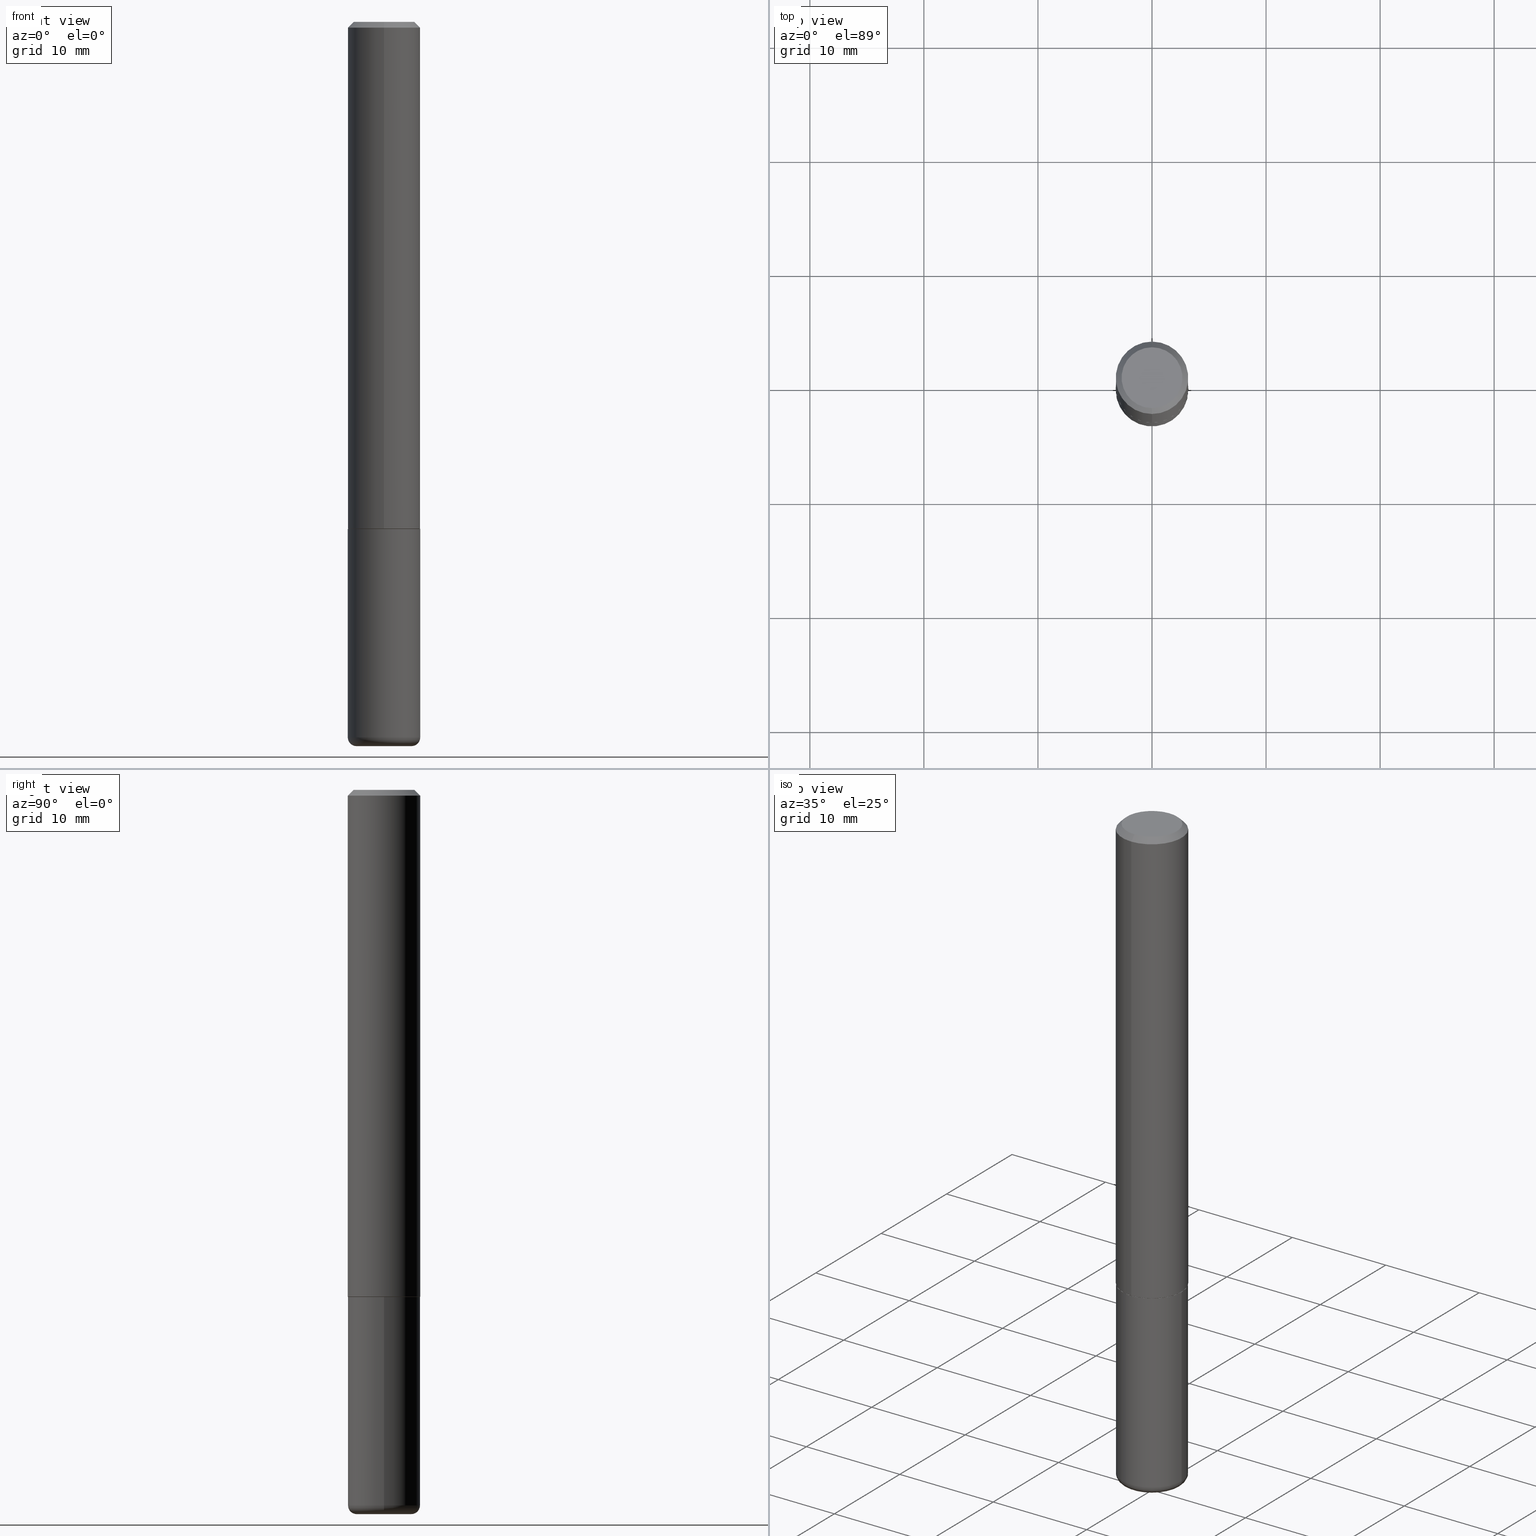
[diagram: canonical four-view strip — front | top / right | iso, engineering-drawing reading convention]
A machine part, canonical four-view strip (front | top / right | iso — engineering-drawing reading convention). The complete STEP part file that produces these views, byte-faithful:
ISO-10303-21;
HEADER;
FILE_DESCRIPTION (( 'STEP AP203' ),
    '1' );
FILE_NAME ('38364.STEP',
    '2024-03-03T01:00:45',
    ( '' ),
    ( '' ),
    'SwSTEP 2.0',
    'SolidWorks 2023',
    '' );
FILE_SCHEMA (( 'CONFIG_CONTROL_DESIGN' ));
ENDSEC;

DATA;
#1 = DIRECTION ( 'NONE',  ( 1.000000000000000000, -6.982962677686262766E-15, 0.000000000000000000 ) ) ;
#2 = AXIS2_PLACEMENT_3D ( 'NONE', #333, #9, #16 ) ;
#3 = AXIS2_PLACEMENT_3D ( 'NONE', #384, #123, #316 ) ;
#4 = CARTESIAN_POINT ( 'NONE',  ( 0.1250000000000000000, -6.982962677686288010E-15, -1.750000000000000222 ) ) ;
#5 = EDGE_CURVE ( 'NONE', #179, #235, #12, .T. ) ;
#6 = PERSON_AND_ORGANIZATION ( #399, #414 ) ;
#7 = CIRCLE ( 'NONE', #403, 0.1250000000000002498 ) ;
#8 = LOCAL_TIME ( 20, 0, 45.00000000000000000, #105 ) ;
#9 = DIRECTION ( 'NONE',  ( -2.446310369361453361E-29, 3.490276172475858772E-15, 1.000000000000000000 ) ) ;
#10 = DATE_TIME_ROLE ( 'classification_date' ) ;
#11 = DIRECTION ( 'NONE',  ( -6.982962677686266711E-15, -1.000000000000000000, 3.490276172475858772E-15 ) ) ;
#12 = CIRCLE ( 'NONE', #270, 0.1049999999999999267 ) ;
#13 = COORDINATED_UNIVERSAL_TIME_OFFSET ( 5, 0, .BEHIND. ) ;
#14 = CONICAL_SURFACE ( 'NONE', #59, 0.1250000000000000000, 0.7853981633974473908 ) ;
#15 = CC_DESIGN_APPROVAL ( #19, ( #90 ) ) ;
#16 = DIRECTION ( 'NONE',  ( -6.982962677686265922E-15, -1.000000000000000000, 4.406206441393973340E-15 ) ) ;
#17 = EDGE_LOOP ( 'NONE', ( #142, #306, #108, #92 ) ) ;
#18 = DIRECTION ( 'NONE',  ( 1.000000000000000000, -6.982962677686266711E-15, 4.876176775795935793E-29 ) ) ;
#19 = APPROVAL ( #157, 'UNSPECIFIED' ) ;
#20 = VERTEX_POINT ( 'NONE', #184 ) ;
#21 = CIRCLE ( 'NONE', #188, 0.1250000000000002498 ) ;
#22 = FACE_OUTER_BOUND ( 'NONE', #31, .T. ) ;
#23 = ORIENTED_EDGE ( 'NONE', *, *, #308, .T. ) ;
#24 = UNCERTAINTY_MEASURE_WITH_UNIT (LENGTH_MEASURE( 1.000000000000000082E-05 ), #388, 'distance_accuracy_value', 'NONE');
#25 = DIRECTION ( 'NONE',  ( 4.937700262164543309E-15, 0.7071067811865444641, -0.7071067811865506814 ) ) ;
#26 = LINE ( 'NONE', #344, #145 ) ;
#27 = FACE_OUTER_BOUND ( 'NONE', #140, .T. ) ;
#28 = ORIENTED_EDGE ( 'NONE', *, *, #317, .F. ) ;
#29 = PERSON_AND_ORGANIZATION ( #399, #414 ) ;
#30 = EDGE_LOOP ( 'NONE', ( #218, #110, #345, #233 ) ) ;
#31 = EDGE_LOOP ( 'NONE', ( #315, #369 ) ) ;
#32 =( NAMED_UNIT ( * ) SI_UNIT ( $, .STERADIAN. ) SOLID_ANGLE_UNIT ( ) );
#33 = CARTESIAN_POINT ( 'NONE',  ( 4.279570410823989044E-29, -6.110092342975505460E-15, -1.750000000000000222 ) ) ;
#34 = ORIENTED_EDGE ( 'NONE', *, *, #346, .F. ) ;
#35 = DIRECTION ( 'NONE',  ( -2.445468806185136597E-29, 3.491481338843145583E-15, 1.000000000000000000 ) ) ;
#36 = EDGE_CURVE ( 'NONE', #398, #20, #7, .T. ) ;
#37 = AXIS2_PLACEMENT_3D ( 'NONE', #155, #296, #347 ) ;
#38 = CC_DESIGN_SECURITY_CLASSIFICATION ( #78, ( #173 ) ) ;
#39 = FACE_OUTER_BOUND ( 'NONE', #124, .T. ) ;
#40 = LINE ( 'NONE', #131, #335 ) ;
#41 = ORIENTED_EDGE ( 'NONE', *, *, #279, .T. ) ;
#42 = CARTESIAN_POINT ( 'NONE',  ( 8.030407079339205337E-16, 0.1049999999999999267, -2.769667782864213337E-16 ) ) ;
#43 = ORIENTED_EDGE ( 'NONE', *, *, #408, .T. ) ;
#44 =( GEOMETRIC_REPRESENTATION_CONTEXT ( 3 ) GLOBAL_UNCERTAINTY_ASSIGNED_CONTEXT ( ( #24 ) ) GLOBAL_UNIT_ASSIGNED_CONTEXT ( ( #388, #219, #32 ) ) REPRESENTATION_CONTEXT ( 'NONE', 'WORKASPACE' ) );
#45 = ADVANCED_FACE ( 'NONE', ( #313 ), #256, .T. ) ;
#46 = CARTESIAN_POINT ( 'NONE',  ( 0.000000000000000000, 0.000000000000000000, 0.000000000000000000 ) ) ;
#47 = ORIENTED_EDGE ( 'NONE', *, *, #164, .T. ) ;
#48 = DIRECTION ( 'NONE',  ( -2.445468806185136597E-29, 3.491481338843145583E-15, 1.000000000000000000 ) ) ;
#49 = ORIENTED_EDGE ( 'NONE', *, *, #196, .T. ) ;
#50 = ADVANCED_FACE ( 'NONE', ( #252 ), #363, .T. ) ;
#51 = AXIS2_PLACEMENT_3D ( 'NONE', #103, #75, #336 ) ;
#52 = ORIENTED_EDGE ( 'NONE', *, *, #297, .F. ) ;
#53 = CC_DESIGN_PERSON_AND_ORGANIZATION_ASSIGNMENT ( #127, #95, ( #78 ) ) ;
#54 = CARTESIAN_POINT ( 'NONE',  ( -0.09499999999999998723, -7.894734117689107359E-15, -2.500000000000000444 ) ) ;
#55 = ORIENTED_EDGE ( 'NONE', *, *, #65, .F. ) ;
#56 = DIRECTION ( 'NONE',  ( -2.445468806185136597E-29, 3.491481338843145583E-15, 1.000000000000000000 ) ) ;
#57 = ORIENTED_EDGE ( 'NONE', *, *, #170, .T. ) ;
#58 = MANIFOLD_SOLID_BREP ( 'Body-Move/Copy2[1]', #187 ) ;
#59 = AXIS2_PLACEMENT_3D ( 'NONE', #89, #387, #221 ) ;
#60 = PRODUCT ( '38364', '38364', '', ( #352 ) ) ;
#61 = CARTESIAN_POINT ( 'NONE',  ( 4.278596836013182697E-29, -6.104493025660276744E-15, -1.749000000000000110 ) ) ;
#62 = CYLINDRICAL_SURFACE ( 'NONE', #93, 0.1250000000000001110 ) ;
#63 = PERSON_AND_ORGANIZATION_ROLE ( 'design_owner' ) ;
#64 = APPROVAL_PERSON_ORGANIZATION ( #152, #19, #323 ) ;
#65 = EDGE_CURVE ( 'NONE', #73, #409, #26, .T. ) ;
#66 = DIRECTION ( 'NONE',  ( -6.982962677686266711E-15, -1.000000000000000000, 3.490276172475858772E-15 ) ) ;
#67 = CARTESIAN_POINT ( 'NONE',  ( 4.892620738722911906E-31, -6.980552344951725975E-17, -0.02000000000000002470 ) ) ;
#68 = AXIS2_PLACEMENT_3D ( 'NONE', #229, #314, #376 ) ;
#69 = AXIS2_PLACEMENT_3D ( 'NONE', #154, #128, #254 ) ;
#70 = DIRECTION ( 'NONE',  ( 1.000000000000000000, -6.982962677686270655E-15, 0.000000000000000000 ) ) ;
#71 = MANIFOLD_SOLID_BREP ( 'Body-Move/Copy2[2]', #130 ) ;
#72 = DIRECTION ( 'NONE',  ( -2.446310369361453361E-29, 3.490276172475858772E-15, 1.000000000000000000 ) ) ;
#73 = VERTEX_POINT ( 'NONE', #255 ) ;
#74 = EDGE_CURVE ( 'NONE', #153, #176, #277, .T. ) ;
#75 = DIRECTION ( 'NONE',  ( -2.445468806185136597E-29, 3.491481338843145583E-15, 1.000000000000000000 ) ) ;
#76 = ORIENTED_EDGE ( 'NONE', *, *, #308, .F. ) ;
#77 = AXIS2_PLACEMENT_3D ( 'NONE', #397, #395, #234 ) ;
#78 = SECURITY_CLASSIFICATION ( '', '', #207 ) ;
#79 = CC_DESIGN_DATE_AND_TIME_ASSIGNMENT ( #271, #10, ( #78 ) ) ;
#80 = DIRECTION ( 'NONE',  ( -2.446310369361453361E-29, 3.490276172475858378E-15, 1.000000000000000000 ) ) ;
#81 = ORIENTED_EDGE ( 'NONE', *, *, #328, .T. ) ;
#82 = DIRECTION ( 'NONE',  ( -6.982962677686265922E-15, -1.000000000000000000, 3.490276172475858378E-15 ) ) ;
#83 = ADVANCED_FACE ( 'NONE', ( #220 ), #14, .T. ) ;
#84 = DIRECTION ( 'NONE',  ( 1.000000000000000000, -6.982962677686262766E-15, 0.000000000000000000 ) ) ;
#85 = ORIENTED_EDGE ( 'NONE', *, *, #200, .T. ) ;
#86 = AXIS2_PLACEMENT_3D ( 'NONE', #326, #150, #285 ) ;
#87 = LINE ( 'NONE', #283, #225 ) ;
#88 = ORIENTED_EDGE ( 'NONE', *, *, #74, .T. ) ;
#89 = CARTESIAN_POINT ( 'NONE',  ( 4.892620738722911906E-31, -6.980552344951725975E-17, -0.02000000000000002470 ) ) ;
#90 = PRODUCT_DEFINITION ( 'UNKNOWN', '', #173, #134 ) ;
#91 = LENGTH_MEASURE_WITH_UNIT ( LENGTH_MEASURE( 0.02539999999999999897 ), #222 );
#92 = ORIENTED_EDGE ( 'NONE', *, *, #164, .F. ) ;
#93 = AXIS2_PLACEMENT_3D ( 'NONE', #366, #72, #11 ) ;
#94 = FACE_OUTER_BOUND ( 'NONE', #250, .T. ) ;
#95 = PERSON_AND_ORGANIZATION_ROLE ( 'classification_officer' ) ;
#96 = CALENDAR_DATE ( 2024, 2, 3 ) ;
#97 = AXIS2_PLACEMENT_3D ( 'NONE', #100, #107, #139 ) ;
#98 = APPROVAL_PERSON_ORGANIZATION ( #325, #193, #295 ) ;
#99 = PERSON_AND_ORGANIZATION ( #399, #414 ) ;
#100 = CARTESIAN_POINT ( 'NONE',  ( 4.892620738722911906E-31, -6.980552344951725975E-17, -0.02000000000000002470 ) ) ;
#101 = CALENDAR_DATE ( 2024, 2, 3 ) ;
#102 = CARTESIAN_POINT ( 'NONE',  ( -8.658873720330540358E-16, -0.1240000000000061053, -1.749999999999999556 ) ) ;
#103 = CARTESIAN_POINT ( 'NONE',  ( 6.113672015462842613E-29, -8.728703347107866520E-15, -2.500000000000000444 ) ) ;
#104 = AXIS2_PLACEMENT_3D ( 'NONE', #67, #166, #172 ) ;
#105 = COORDINATED_UNIVERSAL_TIME_OFFSET ( 5, 0, .BEHIND. ) ;
#106 = CARTESIAN_POINT ( 'NONE',  ( -7.889572697437255223E-16, -0.1049999999999999267, 4.559912179335083715E-16 ) ) ;
#107 = DIRECTION ( 'NONE',  ( 2.446310369361453361E-29, -3.490276172475858772E-15, -1.000000000000000000 ) ) ;
#108 = ORIENTED_EDGE ( 'NONE', *, *, #294, .T. ) ;
#109 = CARTESIAN_POINT ( 'NONE',  ( 4.281043146382543451E-29, -6.107983301832753147E-15, -1.750000000000000222 ) ) ;
#110 = ORIENTED_EDGE ( 'NONE', *, *, #317, .T. ) ;
#111 = CIRCLE ( 'NONE', #391, 0.03000000000000024175 ) ;
#112 = DIRECTION ( 'NONE',  ( 5.024295867788490741E-15, 0.7071067811866103003, 0.7071067811864847341 ) ) ;
#113 = ORIENTED_EDGE ( 'NONE', *, *, #322, .T. ) ;
#114 = APPROVAL ( #167, 'UNSPECIFIED' ) ;
#115 = EDGE_LOOP ( 'NONE', ( #52, #120 ) ) ;
#116 = PLANE ( 'NONE',  #205 ) ;
#117 = ORIENTED_EDGE ( 'NONE', *, *, #370, .F. ) ;
#118 = CONICAL_SURFACE ( 'NONE', #97, 0.1250000000000000000, 0.7853981633974473908 ) ;
#119 = CARTESIAN_POINT ( 'NONE',  ( 4.279570410823989044E-29, -6.110092342975505460E-15, -1.750000000000000222 ) ) ;
#120 = ORIENTED_EDGE ( 'NONE', *, *, #302, .F. ) ;
#121 = ADVANCED_FACE ( 'NONE', ( #94 ), #62, .T. ) ;
#122 = DIRECTION ( 'NONE',  ( -6.982962677686265133E-15, -1.000000000000000000, 4.370956789862812472E-15 ) ) ;
#123 = DIRECTION ( 'NONE',  ( -2.446310369361453080E-29, 3.490276172475858378E-15, 1.000000000000000000 ) ) ;
#124 = EDGE_LOOP ( 'NONE', ( #76, #274, #85, #28 ) ) ;
#125 = CARTESIAN_POINT ( 'NONE',  ( 6.040307951277287977E-29, -8.623958906942569995E-15, -2.470000000000000195 ) ) ;
#126 = LOCAL_TIME ( 20, 0, 45.00000000000000000, #259 ) ;
#127 = PERSON_AND_ORGANIZATION ( #399, #414 ) ;
#128 = DIRECTION ( 'NONE',  ( 0.000000000000000000, 0.000000000000000000, 1.000000000000000000 ) ) ;
#129 = SHAPE_DEFINITION_REPRESENTATION ( #162, #158 ) ;
#130 = CLOSED_SHELL ( 'NONE', ( #50, #121, #83, #258, #183, #243, #392, #360 ) ) ;
#131 = CARTESIAN_POINT ( 'NONE',  ( -0.1250000000000000000, 8.881784197001252323E-16, -6.148668862818632227E-30 ) ) ;
#132 = CIRCLE ( 'NONE', #224, 0.09499999999999998723 ) ;
#133 = EDGE_CURVE ( 'NONE', #377, #182, #40, .T. ) ;
#134 = DESIGN_CONTEXT ( 'detailed design', #268, 'design' ) ;
#135 = FACE_OUTER_BOUND ( 'NONE', #272, .T. ) ;
#136 = LINE ( 'NONE', #102, #350 ) ;
#137 = DIRECTION ( 'NONE',  ( -2.446310369361453361E-29, 3.490276172475858378E-15, 1.000000000000000000 ) ) ;
#138 = ORIENTED_EDGE ( 'NONE', *, *, #5, .F. ) ;
#139 = DIRECTION ( 'NONE',  ( 6.982962677686265922E-15, 1.000000000000000000, -3.483106191921935554E-15 ) ) ;
#140 = EDGE_LOOP ( 'NONE', ( #319, #113 ) ) ;
#141 = FACE_OUTER_BOUND ( 'NONE', #115, .T. ) ;
#142 = ORIENTED_EDGE ( 'NONE', *, *, #215, .F. ) ;
#143 = DIRECTION ( 'NONE',  ( -6.982962677686265922E-15, -1.000000000000000000, 4.406206441393973340E-15 ) ) ;
#144 = ORIENTED_EDGE ( 'NONE', *, *, #170, .F. ) ;
#145 = VECTOR ( 'NONE', #382, 39.37007874015748143 ) ;
#146 = PLANE ( 'NONE',  #238 ) ;
#147 = ORIENTED_EDGE ( 'NONE', *, *, #36, .F. ) ;
#148 = ORIENTED_EDGE ( 'NONE', *, *, #297, .T. ) ;
#149 = ADVANCED_FACE ( 'NONE', ( #135 ), #232, .T. ) ;
#150 = DIRECTION ( 'NONE',  ( -2.446310369361453361E-29, 3.490276172475858772E-15, 1.000000000000000000 ) ) ;
#151 = AXIS2_PLACEMENT_3D ( 'NONE', #375, #237, #143 ) ;
#152 = PERSON_AND_ORGANIZATION ( #399, #414 ) ;
#153 = VERTEX_POINT ( 'NONE', #362 ) ;
#154 = CARTESIAN_POINT ( 'NONE',  ( 0.000000000000000000, 0.000000000000000000, 0.000000000000000000 ) ) ;
#155 = CARTESIAN_POINT ( 'NONE',  ( 6.040307951277287977E-29, -8.623958906942569995E-15, -2.470000000000000195 ) ) ;
#156 = ADVANCED_FACE ( 'NONE', ( #327 ), #180, .T. ) ;
#157 = APPROVAL_STATUS ( 'not_yet_approved' ) ;
#158 = ADVANCED_BREP_SHAPE_REPRESENTATION ( '38364', ( #58, #71, #69 ), #44 ) ;
#159 = PERSON_AND_ORGANIZATION_ROLE ( 'creator' ) ;
#160 = AXIS2_PLACEMENT_3D ( 'NONE', #125, #320, #290 ) ;
#161 = PERSON_AND_ORGANIZATION ( #399, #414 ) ;
#162 = PRODUCT_DEFINITION_SHAPE ( 'NONE', 'NONE',  #90 ) ;
#163 = ORIENTED_EDGE ( 'NONE', *, *, #408, .F. ) ;
#164 = EDGE_CURVE ( 'NONE', #377, #73, #247, .T. ) ;
#165 = DATE_AND_TIME ( #169, #8 ) ;
#166 = DIRECTION ( 'NONE',  ( -2.446310369361453361E-29, 3.490276172475858772E-15, 1.000000000000000000 ) ) ;
#167 = APPROVAL_STATUS ( 'not_yet_approved' ) ;
#168 = CARTESIAN_POINT ( 'NONE',  ( -8.575622497214408537E-16, -0.1250000000000000555, -0.01999999999999959102 ) ) ;
#169 = CALENDAR_DATE ( 2024, 2, 3 ) ;
#170 = EDGE_CURVE ( 'NONE', #176, #153, #371, .T. ) ;
#171 = DIRECTION ( 'NONE',  ( -2.445468806185136877E-29, 3.491481338843145188E-15, 1.000000000000000000 ) ) ;
#172 = DIRECTION ( 'NONE',  ( -6.982962677686265922E-15, -1.000000000000000000, 3.483106191921935554E-15 ) ) ;
#173 = PRODUCT_DEFINITION_FORMATION_WITH_SPECIFIED_SOURCE ( 'ANY', '', #60, .NOT_KNOWN. ) ;
#174 = LOCAL_TIME ( 20, 0, 45.00000000000000000, #192 ) ;
#175 = FACE_OUTER_BOUND ( 'NONE', #276, .T. ) ;
#176 = VERTEX_POINT ( 'NONE', #202 ) ;
#177 = CARTESIAN_POINT ( 'NONE',  ( 4.278596836013182697E-29, -6.104493025660276744E-15, -1.749000000000000110 ) ) ;
#178 = CARTESIAN_POINT ( 'NONE',  ( -2.189746715388963618E-45, 3.124223679955351557E-31, 8.951221982354351893E-17 ) ) ;
#179 = VERTEX_POINT ( 'NONE', #42 ) ;
#180 = TOROIDAL_SURFACE ( 'NONE', #260, 0.09499999999999998723, 0.03000000000000025216 ) ;
#181 = DIRECTION ( 'NONE',  ( -6.982962677686265922E-15, -1.000000000000000000, 4.406206441393973340E-15 ) ) ;
#182 = VERTEX_POINT ( 'NONE', #396 ) ;
#183 = ADVANCED_FACE ( 'NONE', ( #262 ), #201, .T. ) ;
#184 = CARTESIAN_POINT ( 'NONE',  ( 8.881784197001479121E-16, 0.1249999999999941019, -1.749000000000000554 ) ) ;
#185 = APPLICATION_CONTEXT ( 'configuration controlled 3d designs of mechanical parts and assemblies' ) ;
#186 = VERTEX_POINT ( 'NONE', #299 ) ;
#187 = CLOSED_SHELL ( 'NONE', ( #149, #156, #263, #385, #45, #353 ) ) ;
#188 = AXIS2_PLACEMENT_3D ( 'NONE', #177, #400, #372 ) ;
#189 = CARTESIAN_POINT ( 'NONE',  ( -8.658873720330540358E-16, -0.1240000000000061053, -1.749999999999999556 ) ) ;
#190 = DIRECTION ( 'NONE',  ( -2.446310369361453361E-29, 3.490276172475858772E-15, 1.000000000000000000 ) ) ;
#191 = CARTESIAN_POINT ( 'NONE',  ( -8.728703347107421208E-16, -0.1250000000000063560, -1.748999999999999666 ) ) ;
#192 = COORDINATED_UNIVERSAL_TIME_OFFSET ( 5, 0, .BEHIND. ) ;
#193 = APPROVAL ( #390, 'UNSPECIFIED' ) ;
#194 = DATE_TIME_ROLE ( 'creation_date' ) ;
#195 = VECTOR ( 'NONE', #25, 39.37007874015748143 ) ;
#196 = EDGE_CURVE ( 'NONE', #20, #153, #394, .T. ) ;
#197 = ORIENTED_EDGE ( 'NONE', *, *, #402, .T. ) ;
#198 = CARTESIAN_POINT ( 'NONE',  ( 8.846257060213682142E-16, 0.1239999999999938790, -1.750000000000000666 ) ) ;
#199 = DIRECTION ( 'NONE',  ( -4.937700262164969294E-15, -0.7071067811866054154, 0.7071067811864896191 ) ) ;
#200 = EDGE_CURVE ( 'NONE', #401, #398, #136, .T. ) ;
#201 = CYLINDRICAL_SURFACE ( 'NONE', #298, 0.1250000000000001110 ) ;
#202 = CARTESIAN_POINT ( 'NONE',  ( -8.575622497214408537E-16, -0.1250000000000000555, -0.01999999999999959102 ) ) ;
#203 = LINE ( 'NONE', #168, #356 ) ;
#204 = AXIS2_PLACEMENT_3D ( 'NONE', #418, #383, #282 ) ;
#205 = AXIS2_PLACEMENT_3D ( 'NONE', #305, #242, #342 ) ;
#206 = ORIENTED_EDGE ( 'NONE', *, *, #200, .F. ) ;
#207 = SECURITY_CLASSIFICATION_LEVEL ( 'unclassified' ) ;
#208 = CC_DESIGN_DATE_AND_TIME_ASSIGNMENT ( #223, #194, ( #90 ) ) ;
#209 = DIRECTION ( 'NONE',  ( 2.438088387897960049E-29, -3.491481338843145188E-15, -1.000000000000000000 ) ) ;
#210 = VERTEX_POINT ( 'NONE', #198 ) ;
#211 = CARTESIAN_POINT ( 'NONE',  ( 8.810729923425669213E-16, 0.1239999999999938790, -1.750000000000000666 ) ) ;
#212 = ORIENTED_EDGE ( 'NONE', *, *, #328, .F. ) ;
#213 = DIRECTION ( 'NONE',  ( -2.446310369361453361E-29, 3.490276172475858772E-15, 1.000000000000000000 ) ) ;
#214 = DIRECTION ( 'NONE',  ( -6.982962677686265922E-15, -1.000000000000000000, 3.490276172475858378E-15 ) ) ;
#215 = EDGE_CURVE ( 'NONE', #338, #377, #111, .T. ) ;
#216 = AXIS2_PLACEMENT_3D ( 'NONE', #178, #240, #82 ) ;
#217 = DIRECTION ( 'NONE',  ( -2.446310369361453361E-29, 3.490276172475858772E-15, 1.000000000000000000 ) ) ;
#218 = ORIENTED_EDGE ( 'NONE', *, *, #196, .F. ) ;
#219 =( NAMED_UNIT ( * ) PLANE_ANGLE_UNIT ( ) SI_UNIT ( $, .RADIAN. ) );
#220 = FACE_OUTER_BOUND ( 'NONE', #241, .T. ) ;
#221 = DIRECTION ( 'NONE',  ( 6.982962677686265922E-15, 1.000000000000000000, -3.483106191921935554E-15 ) ) ;
#222 =( LENGTH_UNIT ( ) NAMED_UNIT ( * ) SI_UNIT ( $, .METRE. ) );
#223 = DATE_AND_TIME ( #293, #286 ) ;
#224 = AXIS2_PLACEMENT_3D ( 'NONE', #340, #48, #281 ) ;
#225 = VECTOR ( 'NONE', #80, 39.37007874015748143 ) ;
#226 = APPROVAL_ROLE ( '' ) ;
#227 = PLANE ( 'NONE',  #77 ) ;
#228 = CARTESIAN_POINT ( 'NONE',  ( 6.040307951277287977E-29, -8.623958906942569995E-15, -2.470000000000000195 ) ) ;
#229 = CARTESIAN_POINT ( 'NONE',  ( 0.09499999999999998723, -9.287340361322766595E-15, -2.470000000000000195 ) ) ;
#230 = CIRCLE ( 'NONE', #51, 0.09499999999999998723 ) ;
#231 = CC_DESIGN_APPROVAL ( #193, ( #173 ) ) ;
#232 = CYLINDRICAL_SURFACE ( 'NONE', #284, 0.1250000000000000000 ) ;
#233 = ORIENTED_EDGE ( 'NONE', *, *, #74, .F. ) ;
#234 = DIRECTION ( 'NONE',  ( -1.000000000000000000, 6.982962677686265922E-15, -4.876176775795935793E-29 ) ) ;
#235 = VERTEX_POINT ( 'NONE', #106 ) ;
#236 = CC_DESIGN_PERSON_AND_ORGANIZATION_ASSIGNMENT ( #29, #63, ( #60 ) ) ;
#237 = DIRECTION ( 'NONE',  ( -2.446310369361453361E-29, 3.490276172475858772E-15, 1.000000000000000000 ) ) ;
#238 = AXIS2_PLACEMENT_3D ( 'NONE', #406, #209, #407 ) ;
#239 = EDGE_LOOP ( 'NONE', ( #197, #341 ) ) ;
#240 = DIRECTION ( 'NONE',  ( -2.446310369361453361E-29, 3.490276172475858772E-15, 1.000000000000000000 ) ) ;
#241 = EDGE_LOOP ( 'NONE', ( #291, #374, #57, #212 ) ) ;
#242 = DIRECTION ( 'NONE',  ( 2.446310369361453080E-29, -3.490276172475858378E-15, -1.000000000000000000 ) ) ;
#243 = ADVANCED_FACE ( 'NONE', ( #39 ), #329, .T. ) ;
#244 = ORIENTED_EDGE ( 'NONE', *, *, #253, .F. ) ;
#245 = CARTESIAN_POINT ( 'NONE',  ( -2.189746715388963618E-45, 3.124223679955351557E-31, 8.951221982354351893E-17 ) ) ;
#246 = PRODUCT_RELATED_PRODUCT_CATEGORY ( 'detail', '', ( #60 ) ) ;
#247 = CIRCLE ( 'NONE', #386, 0.1250000000000000000 ) ;
#248 = PERSON_AND_ORGANIZATION ( #399, #414 ) ;
#249 = CARTESIAN_POINT ( 'NONE',  ( 0.000000000000000000, 0.000000000000000000, 0.000000000000000000 ) ) ;
#250 = EDGE_LOOP ( 'NONE', ( #417, #49, #144, #117 ) ) ;
#251 = CALENDAR_DATE ( 2024, 2, 3 ) ;
#252 = FACE_OUTER_BOUND ( 'NONE', #351, .T. ) ;
#253 = EDGE_CURVE ( 'NONE', #235, #176, #203, .T. ) ;
#254 = DIRECTION ( 'NONE',  ( 1.000000000000000000, 0.000000000000000000, 0.000000000000000000 ) ) ;
#255 = CARTESIAN_POINT ( 'NONE',  ( 0.1250000000000001110, -9.496829241653354912E-15, -2.470000000000000195 ) ) ;
#256 = TOROIDAL_SURFACE ( 'NONE', #37, 0.09499999999999998723, 0.03000000000000025216 ) ;
#257 = APPLICATION_PROTOCOL_DEFINITION ( 'international standard', 'config_control_design', 1994, #185 ) ;
#258 = ADVANCED_FACE ( 'NONE', ( #175 ), #118, .T. ) ;
#259 = COORDINATED_UNIVERSAL_TIME_OFFSET ( 5, 0, .BEHIND. ) ;
#260 = AXIS2_PLACEMENT_3D ( 'NONE', #228, #331, #303 ) ;
#261 = CC_DESIGN_APPROVAL ( #114, ( #78 ) ) ;
#262 = FACE_OUTER_BOUND ( 'NONE', #30, .T. ) ;
#263 = ADVANCED_FACE ( 'NONE', ( #267 ), #227, .F. ) ;
#264 = CARTESIAN_POINT ( 'NONE',  ( 6.040307951277287977E-29, -8.623958906942569995E-15, -2.470000000000000195 ) ) ;
#265 = PERSON_AND_ORGANIZATION_ROLE ( 'design_supplier' ) ;
#266 = CC_DESIGN_PERSON_AND_ORGANIZATION_ASSIGNMENT ( #6, #410, ( #173 ) ) ;
#267 = FACE_OUTER_BOUND ( 'NONE', #239, .T. ) ;
#268 = APPLICATION_CONTEXT ( 'configuration controlled 3d designs of mechanical parts and assemblies' ) ;
#269 = CARTESIAN_POINT ( 'NONE',  ( -0.09499999999999998723, -7.948943307970475008E-15, -2.470000000000000195 ) ) ;
#270 = AXIS2_PLACEMENT_3D ( 'NONE', #245, #217, #214 ) ;
#271 = DATE_AND_TIME ( #101, #364 ) ;
#272 = EDGE_LOOP ( 'NONE', ( #43, #367, #380, #55 ) ) ;
#273 = DIRECTION ( 'NONE',  ( 7.105427357601001859E-15, 1.000000000000000000, -3.491481338843145583E-15 ) ) ;
#274 = ORIENTED_EDGE ( 'NONE', *, *, #302, .T. ) ;
#275 = PLANE ( 'NONE',  #3 ) ;
#276 = EDGE_LOOP ( 'NONE', ( #244, #138, #81, #88 ) ) ;
#277 = CIRCLE ( 'NONE', #86, 0.1250000000000000000 ) ;
#278 = APPROVAL_PERSON_ORGANIZATION ( #99, #114, #226 ) ;
#279 = EDGE_CURVE ( 'NONE', #186, #338, #230, .T. ) ;
#280 = CARTESIAN_POINT ( 'NONE',  ( -0.1250000000000001110, -7.735780487242444763E-15, -2.470000000000000195 ) ) ;
#281 = DIRECTION ( 'NONE',  ( 1.000000000000000000, -6.982962677686273021E-15, 0.000000000000000000 ) ) ;
#282 = DIRECTION ( 'NONE',  ( -6.982962677686265922E-15, -1.000000000000000000, 4.406206441393973340E-15 ) ) ;
#283 = CARTESIAN_POINT ( 'NONE',  ( -8.728703347107841277E-16, -0.1250000000000001110, 4.362845215594827410E-16 ) ) ;
#284 = AXIS2_PLACEMENT_3D ( 'NONE', #368, #300, #365 ) ;
#285 = DIRECTION ( 'NONE',  ( -6.982962677686265922E-15, -1.000000000000000000, 3.483106191921935554E-15 ) ) ;
#286 = LOCAL_TIME ( 20, 0, 45.00000000000000000, #389 ) ;
#287 = DATE_AND_TIME ( #251, #174 ) ;
#288 = ORIENTED_EDGE ( 'NONE', *, *, #215, .T. ) ;
#289 = CC_DESIGN_PERSON_AND_ORGANIZATION_ASSIGNMENT ( #161, #159, ( #90 ) ) ;
#290 = DIRECTION ( 'NONE',  ( 1.000000000000000000, -6.982962677686270655E-15, 0.000000000000000000 ) ) ;
#291 = ORIENTED_EDGE ( 'NONE', *, *, #322, .F. ) ;
#292 = CIRCLE ( 'NONE', #68, 0.03000000000000024175 ) ;
#293 = CALENDAR_DATE ( 2024, 2, 3 ) ;
#294 = EDGE_CURVE ( 'NONE', #186, #73, #292, .T. ) ;
#295 = APPROVAL_ROLE ( '' ) ;
#296 = DIRECTION ( 'NONE',  ( -2.445468806185136597E-29, 3.491481338843145583E-15, 1.000000000000000000 ) ) ;
#297 = EDGE_CURVE ( 'NONE', #401, #210, #318, .T. ) ;
#298 = AXIS2_PLACEMENT_3D ( 'NONE', #46, #301, #66 ) ;
#299 = CARTESIAN_POINT ( 'NONE',  ( 0.09499999999999998723, -9.392084801488061542E-15, -2.500000000000000444 ) ) ;
#300 = DIRECTION ( 'NONE',  ( -2.445468806185136597E-29, 3.491481338843145583E-15, 1.000000000000000000 ) ) ;
#301 = DIRECTION ( 'NONE',  ( -2.446310369361453361E-29, 3.490276172475858772E-15, 1.000000000000000000 ) ) ;
#302 = EDGE_CURVE ( 'NONE', #210, #401, #412, .T. ) ;
#303 = DIRECTION ( 'NONE',  ( 1.000000000000000000, -6.982962677686273021E-15, 4.883557194083115143E-29 ) ) ;
#304 = VECTOR ( 'NONE', #112, 39.37007874015748143 ) ;
#305 = CARTESIAN_POINT ( 'NONE',  ( 7.332110811570574327E-16, 0.1049999999999999267, -3.217228881981931301E-16 ) ) ;
#306 = ORIENTED_EDGE ( 'NONE', *, *, #332, .T. ) ;
#307 = EDGE_LOOP ( 'NONE', ( #41, #288, #163, #334 ) ) ;
#308 = EDGE_CURVE ( 'NONE', #210, #20, #404, .T. ) ;
#309 = LINE ( 'NONE', #378, #195 ) ;
#310 = CIRCLE ( 'NONE', #358, 0.1250000000000000000 ) ;
#311 = CIRCLE ( 'NONE', #160, 0.1250000000000000000 ) ;
#312 = ORIENTED_EDGE ( 'NONE', *, *, #133, .F. ) ;
#313 = FACE_OUTER_BOUND ( 'NONE', #17, .T. ) ;
#314 = DIRECTION ( 'NONE',  ( -6.982962677686266711E-15, -1.000000000000000000, 3.491481338843145583E-15 ) ) ;
#315 = ORIENTED_EDGE ( 'NONE', *, *, #279, .F. ) ;
#316 = DIRECTION ( 'NONE',  ( -6.982962677686265922E-15, -1.000000000000000000, 3.490276172475858378E-15 ) ) ;
#317 = EDGE_CURVE ( 'NONE', #20, #398, #21, .T. ) ;
#318 = CIRCLE ( 'NONE', #379, 0.1239999999999999991 ) ;
#319 = ORIENTED_EDGE ( 'NONE', *, *, #5, .T. ) ;
#320 = DIRECTION ( 'NONE',  ( -2.445468806185136597E-29, 3.491481338843145583E-15, 1.000000000000000000 ) ) ;
#321 = APPLICATION_PROTOCOL_DEFINITION ( 'international standard', 'config_control_design', 1994, #268 ) ;
#322 = EDGE_CURVE ( 'NONE', #235, #179, #324, .T. ) ;
#323 = APPROVAL_ROLE ( '' ) ;
#324 = CIRCLE ( 'NONE', #216, 0.1049999999999999267 ) ;
#325 = PERSON_AND_ORGANIZATION ( #399, #414 ) ;
#326 = CARTESIAN_POINT ( 'NONE',  ( 4.892620738722911906E-31, -6.980552344951725975E-17, -0.02000000000000002470 ) ) ;
#327 = FACE_OUTER_BOUND ( 'NONE', #307, .T. ) ;
#328 = EDGE_CURVE ( 'NONE', #179, #153, #309, .T. ) ;
#329 = CONICAL_SURFACE ( 'NONE', #2, 0.1239999999999999991, 0.7853981633975336552 ) ;
#330 = DIRECTION ( 'NONE',  ( -1.000000000000000000, 7.105427357600998703E-15, 0.000000000000000000 ) ) ;
#331 = DIRECTION ( 'NONE',  ( -2.445468806185136597E-29, 3.491481338843145583E-15, 1.000000000000000000 ) ) ;
#332 = EDGE_CURVE ( 'NONE', #338, #186, #132, .T. ) ;
#333 = CARTESIAN_POINT ( 'NONE',  ( 4.281043146382543451E-29, -6.107983301832753147E-15, -1.750000000000000222 ) ) ;
#334 = ORIENTED_EDGE ( 'NONE', *, *, #294, .F. ) ;
#335 = VECTOR ( 'NONE', #171, 39.37007874015748143 ) ;
#336 = DIRECTION ( 'NONE',  ( 1.000000000000000000, -6.982962677686273021E-15, 0.000000000000000000 ) ) ;
#337 = CYLINDRICAL_SURFACE ( 'NONE', #413, 0.1250000000000000000 ) ;
#338 = VERTEX_POINT ( 'NONE', #54 ) ;
#339 = DIMENSIONAL_EXPONENTS ( 1.000000000000000000, 0.000000000000000000, 0.000000000000000000, 0.000000000000000000, 0.000000000000000000, 0.000000000000000000, 0.000000000000000000 ) ;
#340 = CARTESIAN_POINT ( 'NONE',  ( 6.113672015462842613E-29, -8.728703347107866520E-15, -2.500000000000000444 ) ) ;
#341 = ORIENTED_EDGE ( 'NONE', *, *, #346, .T. ) ;
#342 = DIRECTION ( 'NONE',  ( 6.982962677686265922E-15, 1.000000000000000000, -3.490276172475858378E-15 ) ) ;
#343 = VECTOR ( 'NONE', #137, 39.37007874015748143 ) ;
#344 = CARTESIAN_POINT ( 'NONE',  ( 0.1250000000000000000, -8.728703347107833388E-16, 6.095220969744919741E-30 ) ) ;
#345 = ORIENTED_EDGE ( 'NONE', *, *, #370, .T. ) ;
#346 = EDGE_CURVE ( 'NONE', #182, #409, #310, .T. ) ;
#347 = DIRECTION ( 'NONE',  ( 1.000000000000000000, -6.982962677686273021E-15, 4.883557194083115143E-29 ) ) ;
#348 = APPROVAL_DATE_TIME ( #287, #19 ) ;
#349 = CC_DESIGN_PERSON_AND_ORGANIZATION_ASSIGNMENT ( #248, #265, ( #173 ) ) ;
#350 = VECTOR ( 'NONE', #199, 39.37007874015748143 ) ;
#351 = EDGE_LOOP ( 'NONE', ( #148, #23, #147, #206 ) ) ;
#352 = MECHANICAL_CONTEXT ( 'NONE', #185, 'mechanical' ) ;
#353 = ADVANCED_FACE ( 'NONE', ( #22 ), #146, .T. ) ;
#354 = EDGE_LOOP ( 'NONE', ( #312, #47, #415, #34 ) ) ;
#355 = DIRECTION ( 'NONE',  ( -2.445468806185136597E-29, 3.491481338843145583E-15, 1.000000000000000000 ) ) ;
#356 = VECTOR ( 'NONE', #361, 39.37007874015748143 ) ;
#357 = APPROVAL_DATE_TIME ( #165, #114 ) ;
#358 = AXIS2_PLACEMENT_3D ( 'NONE', #119, #56, #84 ) ;
#359 = DATE_AND_TIME ( #96, #126 ) ;
#360 = ADVANCED_FACE ( 'NONE', ( #27 ), #116, .F. ) ;
#361 = DIRECTION ( 'NONE',  ( -4.851104656540959542E-15, -0.7071067811865493491, -0.7071067811865457964 ) ) ;
#362 = CARTESIAN_POINT ( 'NONE',  ( 8.728703347107837333E-16, 0.1249999999999999306, -0.02000000000000046185 ) ) ;
#363 = CONICAL_SURFACE ( 'NONE', #204, 0.1239999999999999991, 0.7853981633975336552 ) ;
#364 = LOCAL_TIME ( 20, 0, 45.00000000000000000, #13 ) ;
#365 = DIRECTION ( 'NONE',  ( 1.000000000000000000, -6.982962677686266711E-15, 4.876176775795935793E-29 ) ) ;
#366 = CARTESIAN_POINT ( 'NONE',  ( 0.000000000000000000, 0.000000000000000000, 0.000000000000000000 ) ) ;
#367 = ORIENTED_EDGE ( 'NONE', *, *, #133, .T. ) ;
#368 = CARTESIAN_POINT ( 'NONE',  ( 0.000000000000000000, 0.000000000000000000, 0.000000000000000000 ) ) ;
#369 = ORIENTED_EDGE ( 'NONE', *, *, #332, .F. ) ;
#370 = EDGE_CURVE ( 'NONE', #398, #176, #87, .T. ) ;
#371 = CIRCLE ( 'NONE', #104, 0.1250000000000000000 ) ;
#372 = DIRECTION ( 'NONE',  ( -6.982962677686265133E-15, -1.000000000000000000, 4.370956789862812472E-15 ) ) ;
#373 = AXIS2_PLACEMENT_3D ( 'NONE', #33, #355, #1 ) ;
#374 = ORIENTED_EDGE ( 'NONE', *, *, #253, .T. ) ;
#375 = CARTESIAN_POINT ( 'NONE',  ( 4.281043146382543451E-29, -6.107983301832753147E-15, -1.750000000000000222 ) ) ;
#376 = DIRECTION ( 'NONE',  ( 1.000000000000000000, -6.982962677686276966E-15, 0.000000000000000000 ) ) ;
#377 = VERTEX_POINT ( 'NONE', #280 ) ;
#378 = CARTESIAN_POINT ( 'NONE',  ( 8.728703347107837333E-16, 0.1249999999999999306, -0.02000000000000046185 ) ) ;
#379 = AXIS2_PLACEMENT_3D ( 'NONE', #109, #213, #181 ) ;
#380 = ORIENTED_EDGE ( 'NONE', *, *, #402, .F. ) ;
#381 = DIRECTION ( 'NONE',  ( -2.445468806185136597E-29, 3.491481338843145583E-15, 1.000000000000000000 ) ) ;
#382 = DIRECTION ( 'NONE',  ( -2.445468806185136877E-29, 3.491481338843145188E-15, 1.000000000000000000 ) ) ;
#383 = DIRECTION ( 'NONE',  ( -2.446310369361453361E-29, 3.490276172475858772E-15, 1.000000000000000000 ) ) ;
#384 = CARTESIAN_POINT ( 'NONE',  ( 4.281043146382543451E-29, -6.107983301832753147E-15, -1.750000000000000222 ) ) ;
#385 = ADVANCED_FACE ( 'NONE', ( #411 ), #337, .T. ) ;
#386 = AXIS2_PLACEMENT_3D ( 'NONE', #264, #35, #70 ) ;
#387 = DIRECTION ( 'NONE',  ( 2.446310369361453361E-29, -3.490276172475858772E-15, -1.000000000000000000 ) ) ;
#388 =( CONVERSION_BASED_UNIT ( 'INCH', #91 ) LENGTH_UNIT ( ) NAMED_UNIT ( #339 ) );
#389 = COORDINATED_UNIVERSAL_TIME_OFFSET ( 5, 0, .BEHIND. ) ;
#390 = APPROVAL_STATUS ( 'not_yet_approved' ) ;
#391 = AXIS2_PLACEMENT_3D ( 'NONE', #269, #273, #330 ) ;
#392 = ADVANCED_FACE ( 'NONE', ( #141 ), #275, .F. ) ;
#393 = CARTESIAN_POINT ( 'NONE',  ( 8.881784197001260212E-16, 0.1250000000000001110, -4.362845215594827410E-16 ) ) ;
#394 = LINE ( 'NONE', #393, #343 ) ;
#395 = DIRECTION ( 'NONE',  ( 2.438088387897960049E-29, -3.491481338843145188E-15, -1.000000000000000000 ) ) ;
#396 = CARTESIAN_POINT ( 'NONE',  ( -0.1250000000000000000, -6.478847205258913284E-15, -1.750000000000000222 ) ) ;
#397 = CARTESIAN_POINT ( 'NONE',  ( 4.279570410823989044E-29, -6.110092342975505460E-15, -1.750000000000000222 ) ) ;
#398 = VERTEX_POINT ( 'NONE', #191 ) ;
#399 = PERSON ( 'UNSPECIFIED', 'UNSPECIFIED', 'UNSPECIFIED', ('UNSPECIFIED'), ('UNSPECIFIED'), ('UNSPECIFIED') ) ;
#400 = DIRECTION ( 'NONE',  ( -2.446310369361453361E-29, 3.490276172475858772E-15, 1.000000000000000000 ) ) ;
#401 = VERTEX_POINT ( 'NONE', #189 ) ;
#402 = EDGE_CURVE ( 'NONE', #409, #182, #405, .T. ) ;
#403 = AXIS2_PLACEMENT_3D ( 'NONE', #61, #190, #122 ) ;
#404 = LINE ( 'NONE', #211, #304 ) ;
#405 = CIRCLE ( 'NONE', #373, 0.1250000000000000000 ) ;
#406 = CARTESIAN_POINT ( 'NONE',  ( -3.926534606047510986E-29, -2.310685068218294639E-14, -2.500000000000000000 ) ) ;
#407 = DIRECTION ( 'NONE',  ( -1.000000000000000000, 6.982962677686265922E-15, -4.876176775795935793E-29 ) ) ;
#408 = EDGE_CURVE ( 'NONE', #73, #377, #311, .T. ) ;
#409 = VERTEX_POINT ( 'NONE', #4 ) ;
#410 = PERSON_AND_ORGANIZATION_ROLE ( 'creator' ) ;
#411 = FACE_OUTER_BOUND ( 'NONE', #354, .T. ) ;
#412 = CIRCLE ( 'NONE', #151, 0.1239999999999999991 ) ;
#413 = AXIS2_PLACEMENT_3D ( 'NONE', #249, #381, #18 ) ;
#414 = ORGANIZATION ( 'UNSPECIFIED', 'UNSPECIFIED', '' ) ;
#415 = ORIENTED_EDGE ( 'NONE', *, *, #65, .T. ) ;
#416 = APPROVAL_DATE_TIME ( #359, #193 ) ;
#417 = ORIENTED_EDGE ( 'NONE', *, *, #36, .T. ) ;
#418 = CARTESIAN_POINT ( 'NONE',  ( 4.281043146382543451E-29, -6.107983301832753147E-15, -1.750000000000000222 ) ) ;
ENDSEC;
END-ISO-10303-21;
